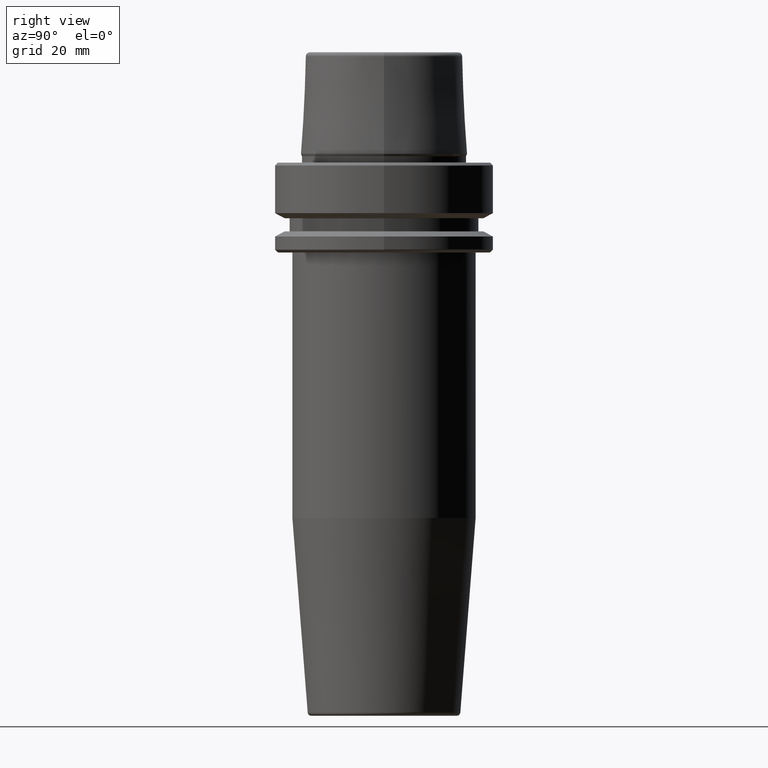
[diagram: clean part render]
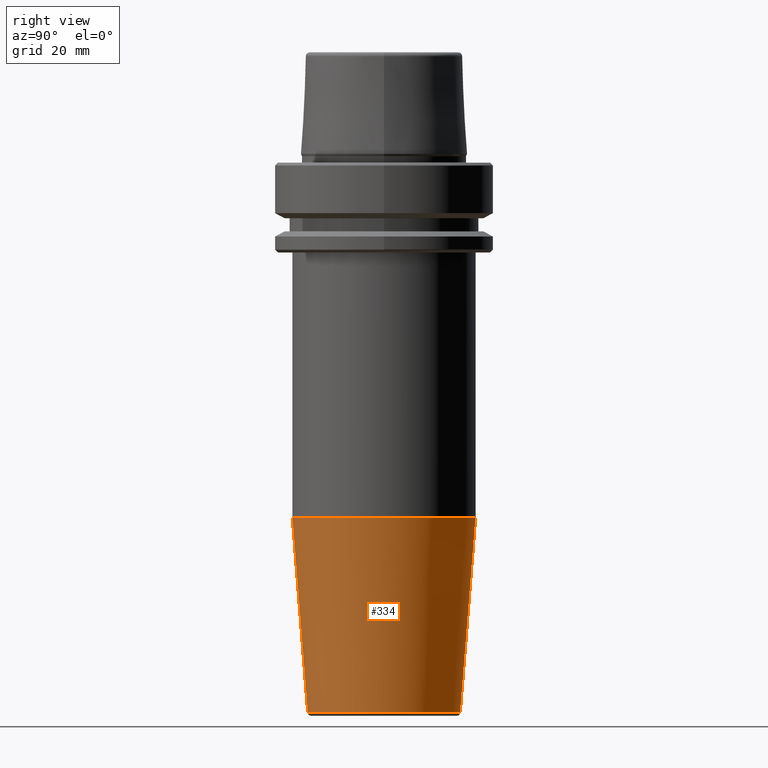
[diagram: same view with one face highlighted and labeled with its STEP entity id]
A machine part, right view. The second image highlights one B-rep face of the part: STEP entity #334.
In plain terms, the highlighted conical surface has half-angle 4.5 deg.
Its self-contained STEP definition (entity closure, byte-faithful):
#21 = DIRECTION ( 'NONE',  ( 0.0000000000000000000, 1.000000000000000000, 0.0000000000000000000 ) ) ;
#97 = AXIS2_PLACEMENT_3D ( 'NONE', #473, #1097, #853 ) ;
#111 = CARTESIAN_POINT ( 'NONE',  ( 0.0000000000000000000, 2.808355605018980900E-015, -102.8220786872083700 ) ) ;
#149 = LINE ( 'NONE', #1071, #1026 ) ;
#157 = VERTEX_POINT ( 'NONE', #1254 ) ;
#159 = AXIS2_PLACEMENT_3D ( 'NONE', #1258, #174, #897 ) ;
#174 = DIRECTION ( 'NONE',  ( 0.0000000000000000000, -3.655662087007025400E-017, 1.000000000000000000 ) ) ;
#230 = ORIENTED_EDGE ( 'NONE', *, *, #802, .T. ) ;
#233 = AXIS2_PLACEMENT_3D ( 'NONE', #111, #702, #21 ) ;
#278 = VECTOR ( 'NONE', #622, 1000.000000000000100 ) ;
#308 = CIRCLE ( 'NONE', #233, 26.49999999999998200 ) ;
#330 = EDGE_CURVE ( 'NONE', #337, #684, #935, .T. ) ;
#334 = ADVANCED_FACE ( 'NONE', ( #372 ), #801, .T. ) ;
#337 = VERTEX_POINT ( 'NONE', #409 ) ;
#372 = FACE_OUTER_BOUND ( 'NONE', #1049, .T. ) ;
#382 = EDGE_CURVE ( 'NONE', #684, #391, #149, .T. ) ;
#391 = VERTEX_POINT ( 'NONE', #1236 ) ;
#409 = CARTESIAN_POINT ( 'NONE',  ( 0.0000000000000000000, 22.07252684207491500, -159.0784590957278800 ) ) ;
#473 = CARTESIAN_POINT ( 'NONE',  ( 0.0000000000000000000, 4.864898775135676200E-015, -159.0784590957278800 ) ) ;
#622 = DIRECTION ( 'NONE',  ( 9.608468044709156700E-018, 0.07845909572783713000, 0.9969173337331285200 ) ) ;
#684 = VERTEX_POINT ( 'NONE', #809 ) ;
#685 = EDGE_CURVE ( 'NONE', #337, #157, #963, .T. ) ;
#702 = DIRECTION ( 'NONE',  ( -0.0000000000000000000, 3.655662087007025400E-017, -1.000000000000000000 ) ) ;
#779 = DIRECTION ( 'NONE',  ( 0.0000000000000000000, -0.07845909572783721400, 0.9969173337331285200 ) ) ;
#801 = CONICAL_SURFACE ( 'NONE', #159, 26.49999999999997900, 0.07853981633973704200 ) ;
#802 = EDGE_CURVE ( 'NONE', #157, #391, #308, .T. ) ;
#809 = CARTESIAN_POINT ( 'NONE',  ( 2.703104934624107400E-015, -22.07252684207490700, -159.0784590957278800 ) ) ;
#853 = DIRECTION ( 'NONE',  ( 0.0000000000000000000, 1.000000000000000000, 0.0000000000000000000 ) ) ;
#897 = DIRECTION ( 'NONE',  ( 0.0000000000000000000, -1.000000000000000000, 0.0000000000000000000 ) ) ;
#913 = CARTESIAN_POINT ( 'NONE',  ( 3.245314017740483400E-015, 26.49999999999998200, -102.8220786872083700 ) ) ;
#923 = ORIENTED_EDGE ( 'NONE', *, *, #685, .T. ) ;
#935 = CIRCLE ( 'NONE', #97, 22.07252684207490700 ) ;
#938 = ORIENTED_EDGE ( 'NONE', *, *, #382, .F. ) ;
#963 = LINE ( 'NONE', #913, #278 ) ;
#1026 = VECTOR ( 'NONE', #779, 1000.000000000000100 ) ;
#1049 = EDGE_LOOP ( 'NONE', ( #1076, #923, #230, #938 ) ) ;
#1071 = CARTESIAN_POINT ( 'NONE',  ( 0.0000000000000000000, -26.49999999999997500, -102.8220786872083700 ) ) ;
#1076 = ORIENTED_EDGE ( 'NONE', *, *, #330, .F. ) ;
#1097 = DIRECTION ( 'NONE',  ( -0.0000000000000000000, 3.655662087007025400E-017, -1.000000000000000000 ) ) ;
#1236 = CARTESIAN_POINT ( 'NONE',  ( 0.0000000000000000000, -26.49999999999997500, -102.8220786872083700 ) ) ;
#1254 = CARTESIAN_POINT ( 'NONE',  ( 3.245314017740483400E-015, 26.49999999999998200, -102.8220786872083700 ) ) ;
#1258 = CARTESIAN_POINT ( 'NONE',  ( 0.0000000000000000000, 2.808355605018980900E-015, -102.8220786872083700 ) ) ;